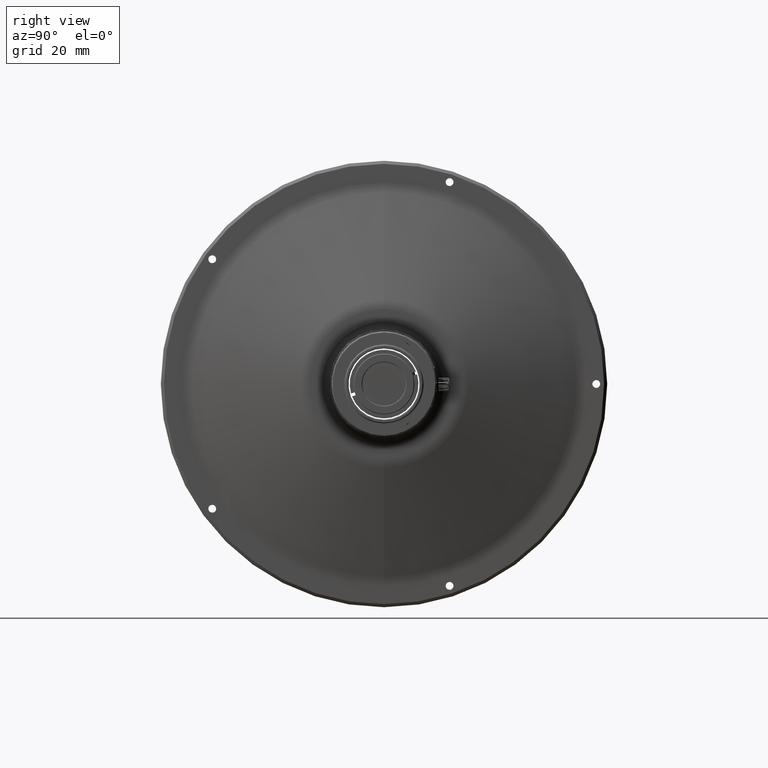
[diagram: clean part render]
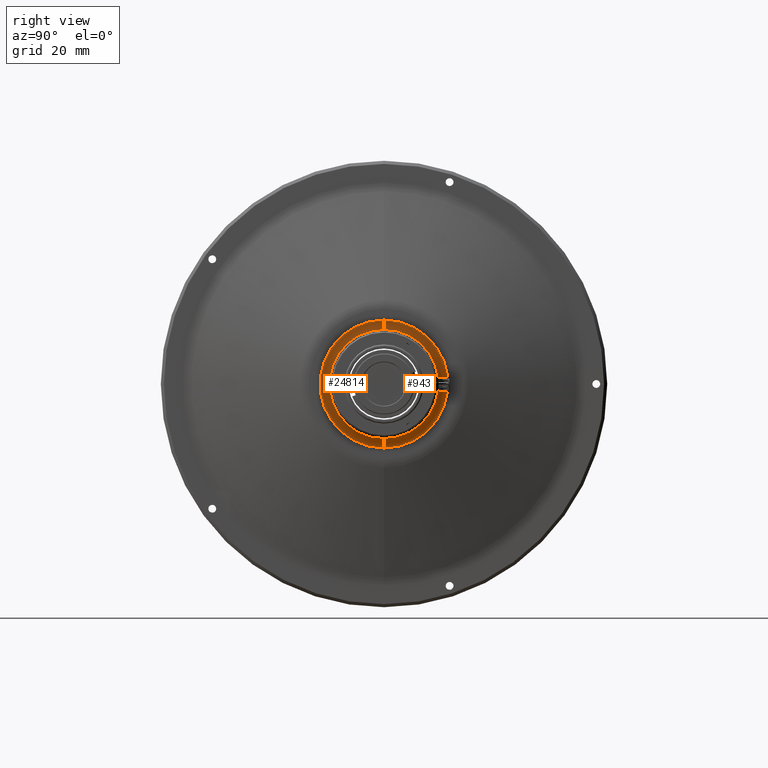
[diagram: same view with one multi-face feature highlighted, each face labeled with its STEP entity id]
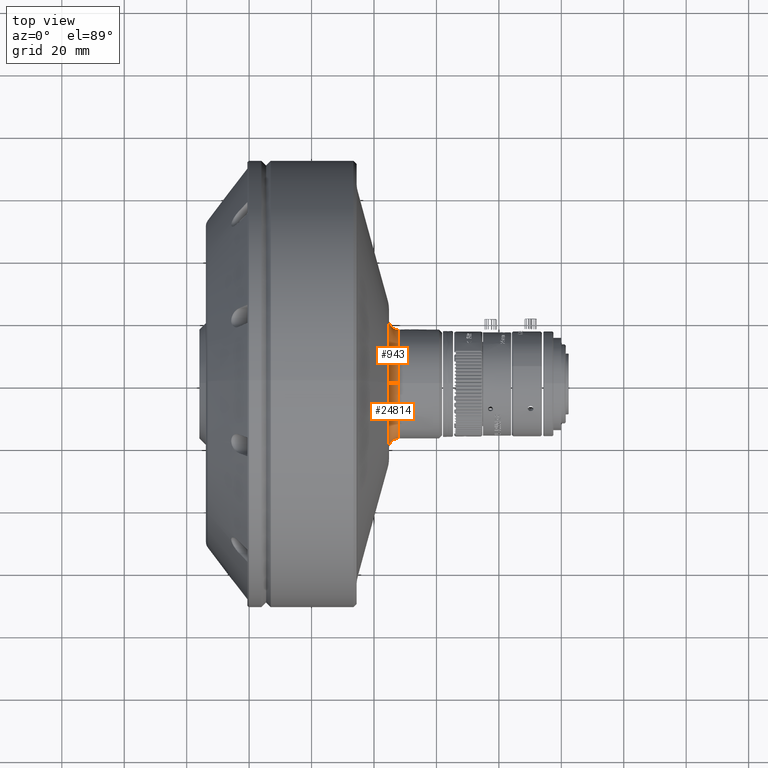
[diagram: same view with one multi-face feature highlighted, each face labeled with its STEP entity id]
A machine part, right view. The highlighted faces form ONE feature: a constant-radius fillet chain: 2 tangent blend faces with common blend radius 3 mm. The faces share edges in the B-rep.
A second angle (top view) of the same feature is appended — it is thin or edge-on in the first view.
Their STEP definitions:
[1] entity #943 (Torus):
#240 = EDGE_CURVE ( 'NONE', #7645, #3006, #16141, .T. ) ;
#943 = ADVANCED_FACE ( 'NONE', ( #20971 ), #30711, .F. ) ;
#1411 = DIRECTION ( 'NONE',  ( 0.0000000000000000000, -1.224646799147353454E-16, 1.000000000000000000 ) ) ;
#2643 = VERTEX_POINT ( 'NONE', #4895 ) ;
#3006 = VERTEX_POINT ( 'NONE', #22631 ) ;
#3096 = ORIENTED_EDGE ( 'NONE', *, *, #240, .F. ) ;
#3630 = ORIENTED_EDGE ( 'NONE', *, *, #27419, .T. ) ;
#3936 = DIRECTION ( 'NONE',  ( -0.0000000000000000000, 1.000000000000000000, 1.224646799147353207E-16 ) ) ;
#4378 = DIRECTION ( 'NONE',  ( 0.0000000000000000000, 0.0000000000000000000, 1.000000000000000000 ) ) ;
#4895 = CARTESIAN_POINT ( 'NONE',  ( 4.797146968663915878, 0.0000000000000000000, 20.49999999999973355 ) ) ;
#6874 = ORIENTED_EDGE ( 'NONE', *, *, #19355, .T. ) ;
#6973 = DIRECTION ( 'NONE',  ( -1.000000000000000000, -0.0000000000000000000, -0.0000000000000000000 ) ) ;
#7427 = CARTESIAN_POINT ( 'NONE',  ( 7.797146968663931865, 0.0000000000000000000, 17.49999999999972289 ) ) ;
#7559 = DIRECTION ( 'NONE',  ( 0.0000000000000000000, 0.0000000000000000000, -1.000000000000000000 ) ) ;
#7645 = VERTEX_POINT ( 'NONE', #8625 ) ;
#8625 = CARTESIAN_POINT ( 'NONE',  ( 4.797146968663915878, 2.510525938252041349E-15, -20.49999999999973355 ) ) ;
#9526 = ORIENTED_EDGE ( 'NONE', *, *, #12374, .F. ) ;
#9598 = CARTESIAN_POINT ( 'NONE',  ( 7.797146968663931865, 0.0000000000000000000, 0.0000000000000000000 ) ) ;
#12374 = EDGE_CURVE ( 'NONE', #2643, #7645, #24433, .T. ) ;
#13036 = DIRECTION ( 'NONE',  ( -1.000000000000000000, -0.0000000000000000000, -0.0000000000000000000 ) ) ;
#14202 = AXIS2_PLACEMENT_3D ( 'NONE', #32759, #6973, #25167 ) ;
#15487 = CARTESIAN_POINT ( 'NONE',  ( 7.797146968663917654, 0.0000000000000000000, 20.49999999999972289 ) ) ;
#16141 = CIRCLE ( 'NONE', #24765, 2.999999999999999112 ) ;
#16795 = CIRCLE ( 'NONE', #30246, 2.999999999999999112 ) ;
#18258 = CIRCLE ( 'NONE', #26331, 17.49999999999972289 ) ;
#19355 = EDGE_CURVE ( 'NONE', #25087, #3006, #18258, .T. ) ;
#19442 = AXIS2_PLACEMENT_3D ( 'NONE', #30736, #13036, #23002 ) ;
#20971 = FACE_OUTER_BOUND ( 'NONE', #26866, .T. ) ;
#22631 = CARTESIAN_POINT ( 'NONE',  ( 7.797146968663931865, 2.143131898507834327E-15, -17.49999999999972289 ) ) ;
#23002 = DIRECTION ( 'NONE',  ( 0.0000000000000000000, 0.0000000000000000000, 1.000000000000000000 ) ) ;
#24433 = CIRCLE ( 'NONE', #14202, 20.49999999999974420 ) ;
#24765 = AXIS2_PLACEMENT_3D ( 'NONE', #27015, #3936, #1411 ) ;
#25087 = VERTEX_POINT ( 'NONE', #7427 ) ;
#25167 = DIRECTION ( 'NONE',  ( 0.0000000000000000000, 0.0000000000000000000, 1.000000000000000000 ) ) ;
#25437 = DIRECTION ( 'NONE',  ( 0.0000000000000000000, -1.000000000000000000, 0.0000000000000000000 ) ) ;
#26331 = AXIS2_PLACEMENT_3D ( 'NONE', #9598, #26970, #4378 ) ;
#26866 = EDGE_LOOP ( 'NONE', ( #3096, #9526, #3630, #6874 ) ) ;
#26970 = DIRECTION ( 'NONE',  ( -1.000000000000000000, -0.0000000000000000000, -0.0000000000000000000 ) ) ;
#27015 = CARTESIAN_POINT ( 'NONE',  ( 7.797146968663917654, 2.510525938252040166E-15, -20.49999999999972289 ) ) ;
#27419 = EDGE_CURVE ( 'NONE', #2643, #25087, #16795, .T. ) ;
#30246 = AXIS2_PLACEMENT_3D ( 'NONE', #15487, #25437, #7559 ) ;
#30711 = TOROIDAL_SURFACE ( 'NONE', #19442, 20.49999999999972289, 3.000000000000000888 ) ;
#30736 = CARTESIAN_POINT ( 'NONE',  ( 7.797146968663917654, 0.0000000000000000000, 0.0000000000000000000 ) ) ;
#32759 = CARTESIAN_POINT ( 'NONE',  ( 4.797146968663914990, 0.0000000000000000000, 0.0000000000000000000 ) ) ;
[2] entity #24814 (Torus):
#240 = EDGE_CURVE ( 'NONE', #7645, #3006, #16141, .T. ) ;
#649 = ORIENTED_EDGE ( 'NONE', *, *, #240, .T. ) ;
#1411 = DIRECTION ( 'NONE',  ( 0.0000000000000000000, -1.224646799147353454E-16, 1.000000000000000000 ) ) ;
#2643 = VERTEX_POINT ( 'NONE', #4895 ) ;
#3006 = VERTEX_POINT ( 'NONE', #22631 ) ;
#3936 = DIRECTION ( 'NONE',  ( -0.0000000000000000000, 1.000000000000000000, 1.224646799147353207E-16 ) ) ;
#4043 = EDGE_CURVE ( 'NONE', #7645, #2643, #20646, .T. ) ;
#4053 = DIRECTION ( 'NONE',  ( 0.0000000000000000000, 0.0000000000000000000, 1.000000000000000000 ) ) ;
#4895 = CARTESIAN_POINT ( 'NONE',  ( 4.797146968663915878, 0.0000000000000000000, 20.49999999999973355 ) ) ;
#5599 = DIRECTION ( 'NONE',  ( 0.0000000000000000000, 0.0000000000000000000, 1.000000000000000000 ) ) ;
#5981 = CARTESIAN_POINT ( 'NONE',  ( 4.797146968663914990, 0.0000000000000000000, 0.0000000000000000000 ) ) ;
#6157 = DIRECTION ( 'NONE',  ( -1.000000000000000000, -0.0000000000000000000, -0.0000000000000000000 ) ) ;
#7427 = CARTESIAN_POINT ( 'NONE',  ( 7.797146968663931865, 0.0000000000000000000, 17.49999999999972289 ) ) ;
#7559 = DIRECTION ( 'NONE',  ( 0.0000000000000000000, 0.0000000000000000000, -1.000000000000000000 ) ) ;
#7645 = VERTEX_POINT ( 'NONE', #8625 ) ;
#8139 = EDGE_CURVE ( 'NONE', #3006, #25087, #19997, .T. ) ;
#8625 = CARTESIAN_POINT ( 'NONE',  ( 4.797146968663915878, 2.510525938252041349E-15, -20.49999999999973355 ) ) ;
#9381 = AXIS2_PLACEMENT_3D ( 'NONE', #26166, #31214, #5599 ) ;
#14491 = DIRECTION ( 'NONE',  ( -1.000000000000000000, -0.0000000000000000000, -0.0000000000000000000 ) ) ;
#14659 = EDGE_LOOP ( 'NONE', ( #16926, #649, #23678, #21128 ) ) ;
#15487 = CARTESIAN_POINT ( 'NONE',  ( 7.797146968663917654, 0.0000000000000000000, 20.49999999999972289 ) ) ;
#15706 = AXIS2_PLACEMENT_3D ( 'NONE', #24275, #14491, #4053 ) ;
#16141 = CIRCLE ( 'NONE', #24765, 2.999999999999999112 ) ;
#16378 = TOROIDAL_SURFACE ( 'NONE', #9381, 20.49999999999972289, 3.000000000000000888 ) ;
#16795 = CIRCLE ( 'NONE', #30246, 2.999999999999999112 ) ;
#16926 = ORIENTED_EDGE ( 'NONE', *, *, #4043, .F. ) ;
#19997 = CIRCLE ( 'NONE', #15706, 17.49999999999972289 ) ;
#20646 = CIRCLE ( 'NONE', #28636, 20.49999999999974420 ) ;
#21128 = ORIENTED_EDGE ( 'NONE', *, *, #27419, .F. ) ;
#22631 = CARTESIAN_POINT ( 'NONE',  ( 7.797146968663931865, 2.143131898507834327E-15, -17.49999999999972289 ) ) ;
#23678 = ORIENTED_EDGE ( 'NONE', *, *, #8139, .T. ) ;
#24275 = CARTESIAN_POINT ( 'NONE',  ( 7.797146968663931865, 0.0000000000000000000, 0.0000000000000000000 ) ) ;
#24765 = AXIS2_PLACEMENT_3D ( 'NONE', #27015, #3936, #1411 ) ;
#24814 = ADVANCED_FACE ( 'NONE', ( #29018 ), #16378, .F. ) ;
#25087 = VERTEX_POINT ( 'NONE', #7427 ) ;
#25437 = DIRECTION ( 'NONE',  ( 0.0000000000000000000, -1.000000000000000000, 0.0000000000000000000 ) ) ;
#26166 = CARTESIAN_POINT ( 'NONE',  ( 7.797146968663917654, 0.0000000000000000000, 0.0000000000000000000 ) ) ;
#27015 = CARTESIAN_POINT ( 'NONE',  ( 7.797146968663917654, 2.510525938252040166E-15, -20.49999999999972289 ) ) ;
#27419 = EDGE_CURVE ( 'NONE', #2643, #25087, #16795, .T. ) ;
#28636 = AXIS2_PLACEMENT_3D ( 'NONE', #5981, #6157, #32128 ) ;
#29018 = FACE_OUTER_BOUND ( 'NONE', #14659, .T. ) ;
#30246 = AXIS2_PLACEMENT_3D ( 'NONE', #15487, #25437, #7559 ) ;
#31214 = DIRECTION ( 'NONE',  ( -1.000000000000000000, -0.0000000000000000000, -0.0000000000000000000 ) ) ;
#32128 = DIRECTION ( 'NONE',  ( 0.0000000000000000000, 0.0000000000000000000, 1.000000000000000000 ) ) ;